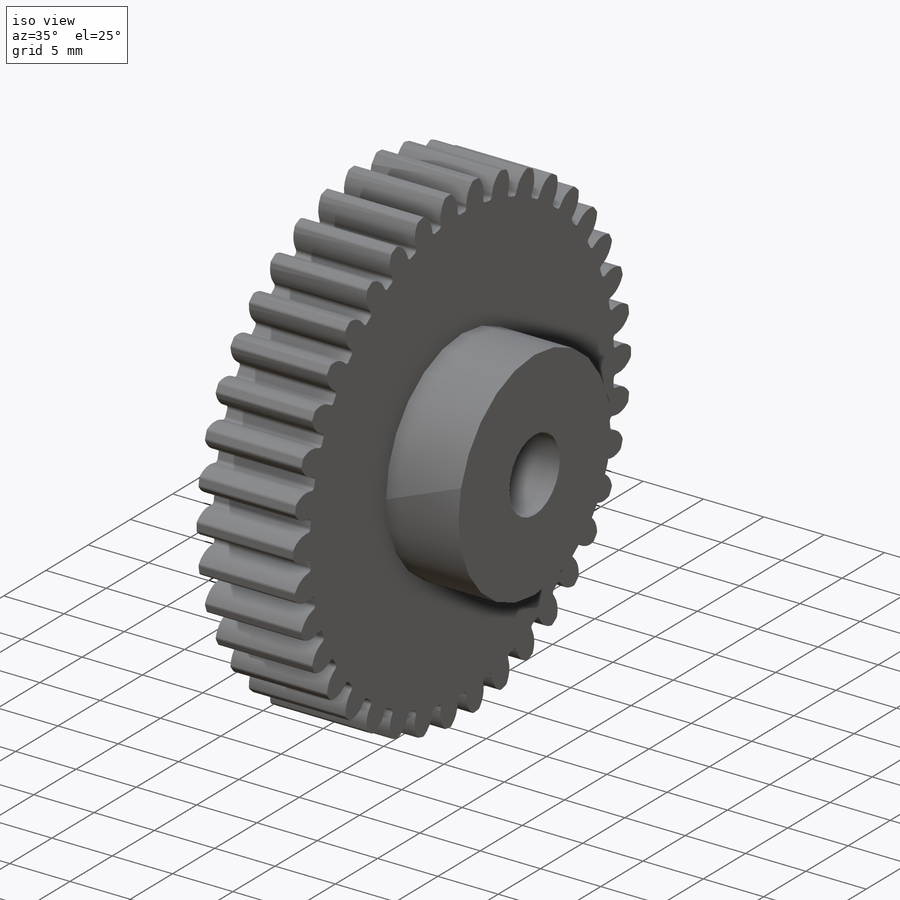
[diagram: iso view]
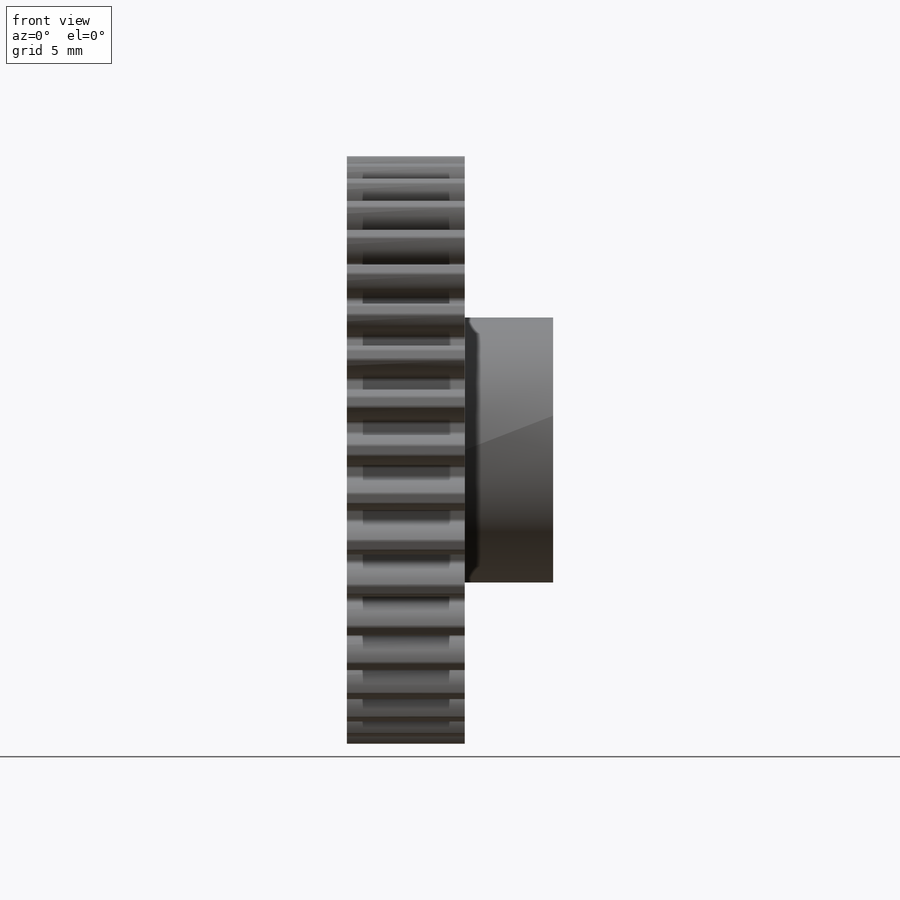
[diagram: front view]
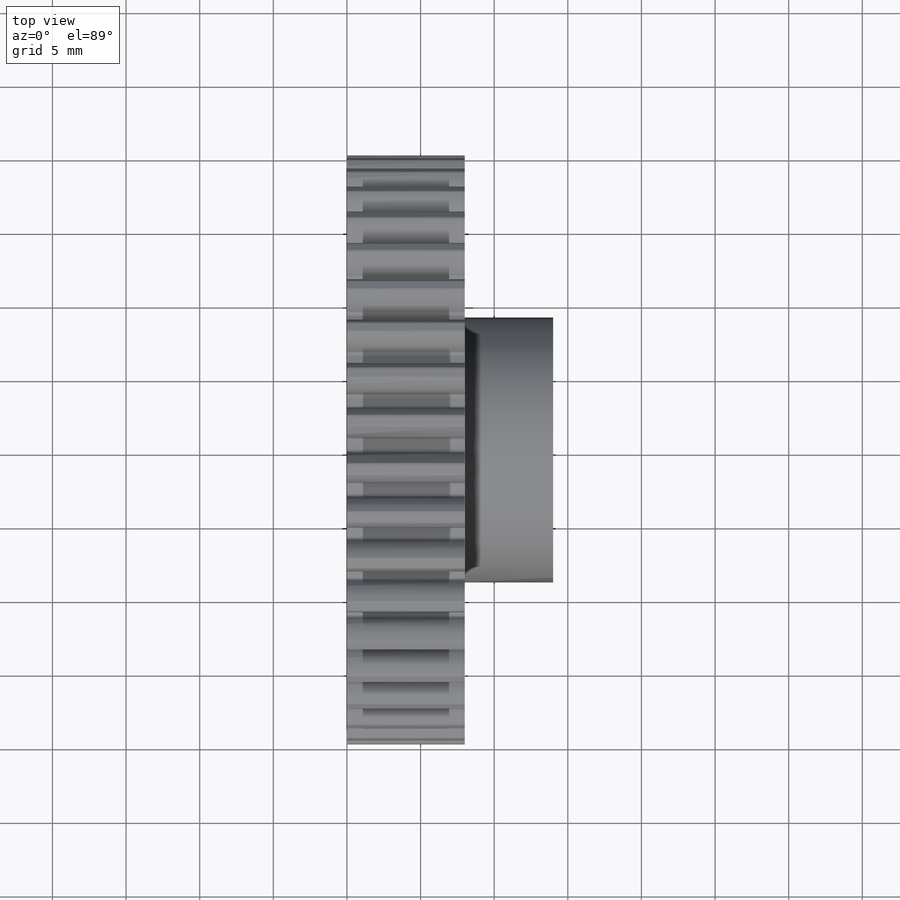
[diagram: top view]
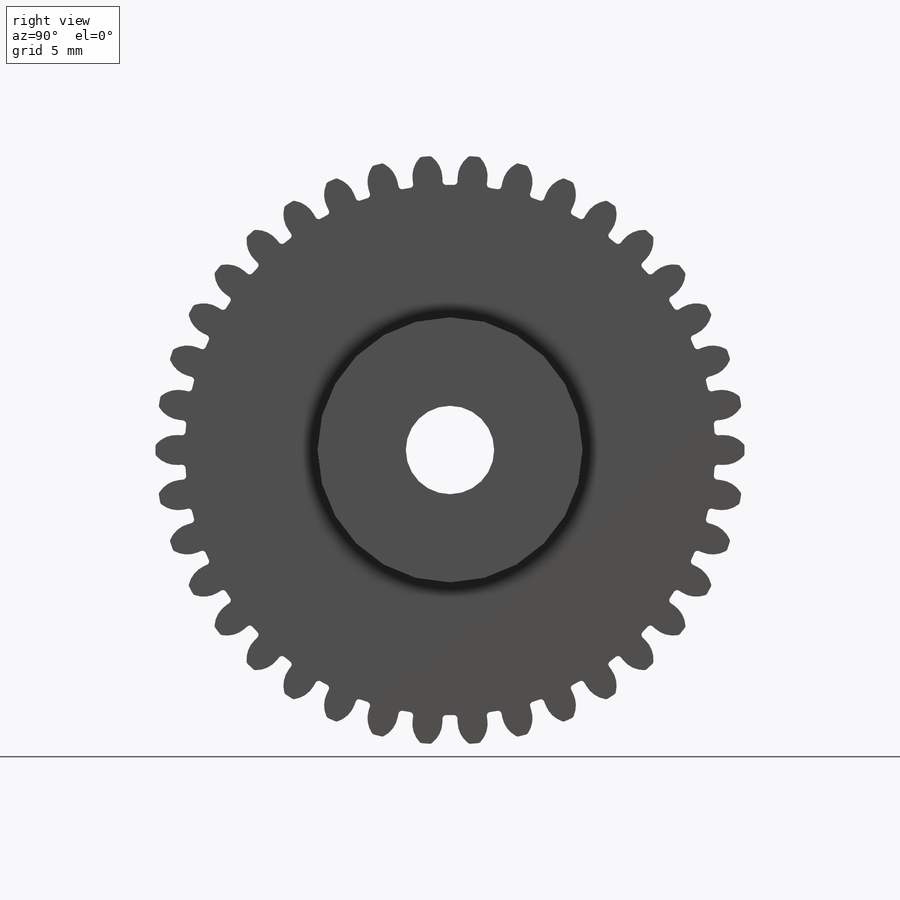
[diagram: right view]
SOLIDWORKS PART (.sldprt)
format: sldprt  version: not decoded by parser v0  size: 623,104 bytes
history: native  units: mm
features: plane x3, sketch x3, extrude x2, material x1, cut_extrude x1, fillet x1, pattern_circular x1 (+10 scaffold rows collapsed)
feature tree (22):
  scaffold x10  (default folders/planes/origin — collapsed)
  material  "Matériau <non spécifié>"
  plane  "Plan de face"
  plane  "Plan de dessus"
  plane  "Plan de droite"
  sketch  "Esquisse1"  dims[D1=40.0mm D2=6.0mm]
  extrude  "Extrusion1"  Depth=8mm
  sketch  "Esquisse22"  dims[c1.D1=2.5mm c1.D2=0.5mm c1.D3=2.0mm c1.D4=~1.854647mm c2.D4=180.0deg c2.D5=~1.848487mm c3.D5=180.0deg c3.D6=0.5mm c3.D1=0.75mm c3.D3=2.0mm]
  cut_extrude  "Enlèv. mat.-Extru.2"  [1 undecoded]
  fillet  "Congé2"  Radius=0.25mm
  pattern_circular  "Répétition circulaire1"  Count=38 Angle=360deg
  sketch  "Esquisse23"  dims[D1=18.0mm]
  extrude  "Extrusion2"  Depth=6mm
decode coverage: 7 of 8 modeling features carry decoded parameters
note: ~ marks probable driven/reference dimensions
note: 1 parameter value undecoded
note: suppression state not decoded; provenance and decode notes live in map.json
